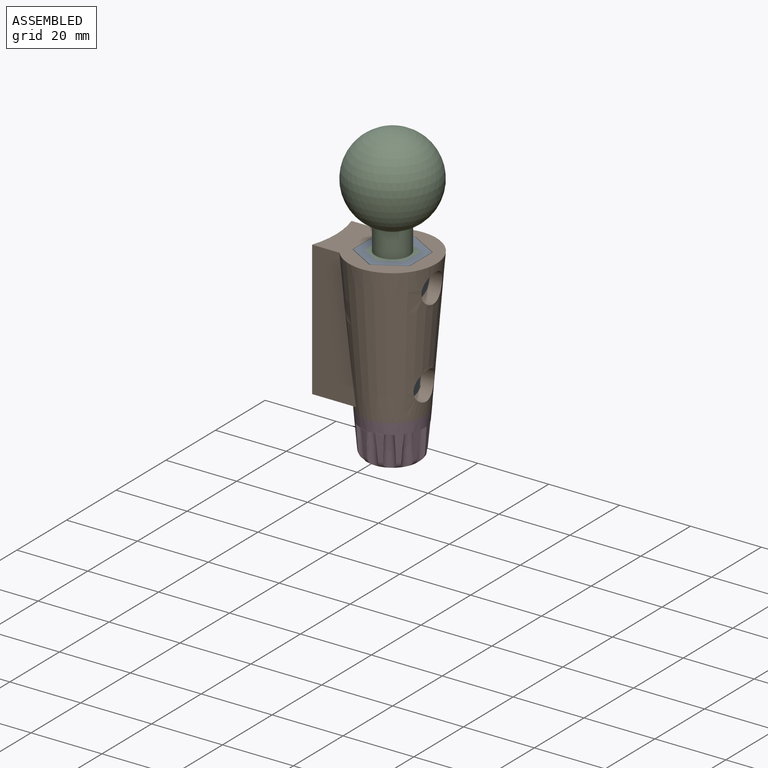
[diagram: assembled view]
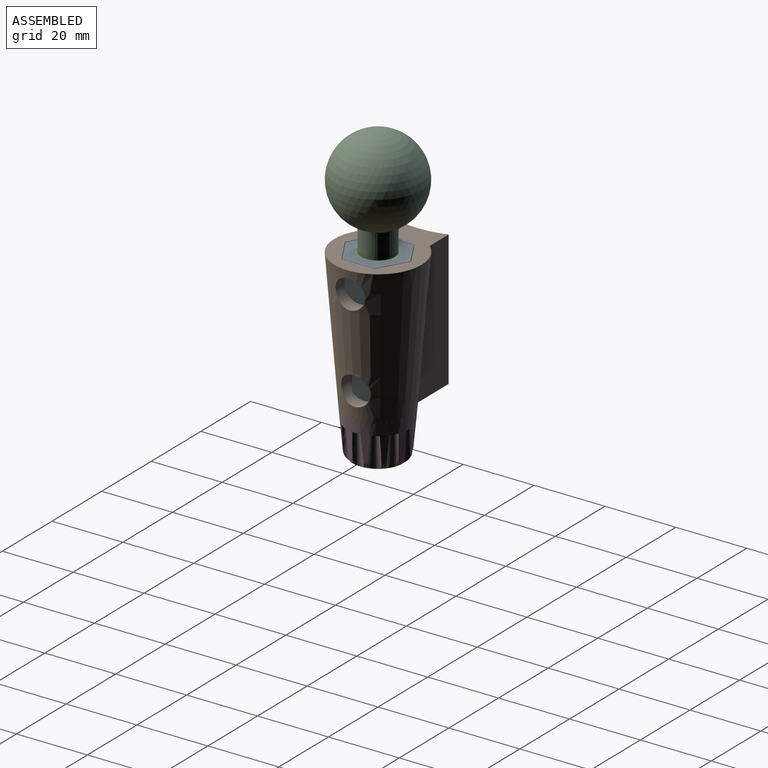
[diagram: assembled view, second angle]
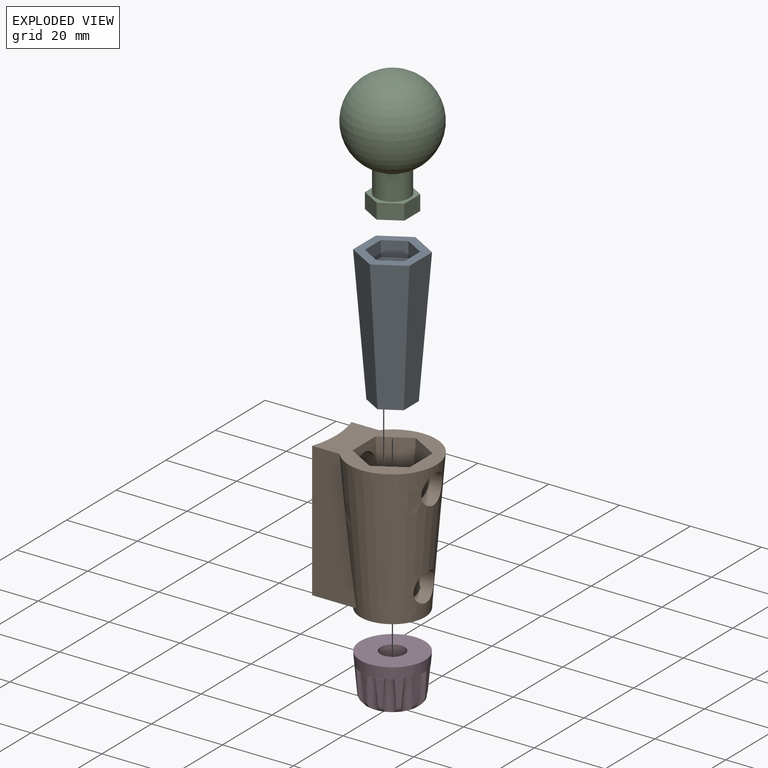
[diagram: exploded view]
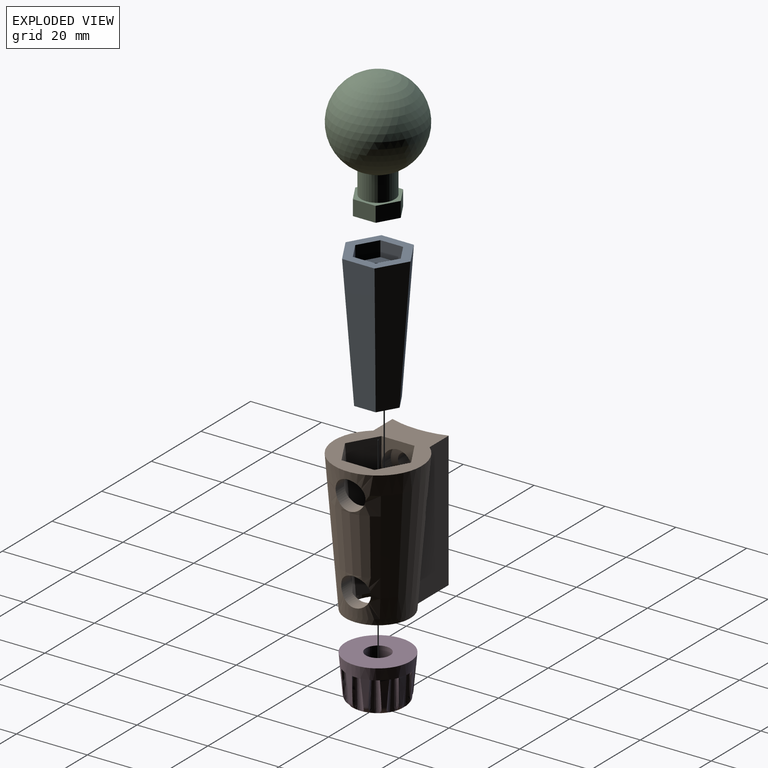
[diagram: exploded view, second angle]
ASSEMBLY  parts=4 mates=3
PART A: 16 faces, bbox 15.9x18.3x38.1 mm
  f0: plane 38.1x9.17mm, normal (1,0,-0.07), area 291.3mm2, adj f1,f5,f6,f7
  f1: plane 38.1x7.94mm, normal (0.5,0.86,-0.07), area 291.3mm2, adj f0,f2,f6,f7
  f2: plane 38.1x7.94mm, normal (-0.5,0.86,-0.07), area 291.3mm2, adj f1,f3,f6,f7
  f3: plane 38.1x9.17mm, normal (-1,0,-0.07), area 291.3mm2, adj f2,f4,f6,f7
  f4: plane 38.1x7.94mm, normal (-0.5,-0.86,-0.07), area 291.3mm2, adj f3,f5,f6,f7
  f5: plane 38.1x7.94mm, normal (0.5,-0.86,-0.07), area 291.3mm2, adj f0,f4,f6,f7
  f6: plane 12.18x10.55mm, normal (0,0,-1), area 64.7mm2, adj f0,f1,f2,f3,f4,f5,f15
  f7: plane 18.33x15.88mm, normal (0,0,1), area 111.3mm2, adj f0,f1,f2,f3,f4,f5,f9,f10
  f8: plane 12.83x11.11mm, normal (0,0,1), area 75.3mm2, adj f9,f10,f11,f12,f13,f14,f15
  f9: plane 5.56x4.32mm, normal (-0.5,0.87,0), area 27.7mm2, adj f7,f8,f10,f14
  f10: plane 6.42x4.32mm, normal (-1,0,0), area 27.7mm2, adj f7,f8,f9,f11
  f11: plane 5.56x4.32mm, normal (-0.5,-0.87,0), area 27.7mm2, adj f7,f8,f10,f12
  f12: plane 5.56x4.32mm, normal (0.5,-0.87,0), area 27.7mm2, adj f7,f8,f11,f13
  f13: plane 6.42x4.32mm, normal (1,0,0), area 27.7mm2, adj f7,f8,f12,f14
  f14: plane 5.56x4.32mm, normal (0.5,0.87,0), area 27.7mm2, adj f7,f8,f9,f13
  f15: cylinder r=3.17mm len=33.78mm, axis (0,0,1), area 673.9mm2, adj f6,f8
PART B: 26 faces, bbox 29.7x24.9x39.9 mm
  f0: cone r=12.34mm half-angle=4.6deg, axis (0,0,1), area 1795.8mm2, adj f4,f6,f7,f16,f20,f21
  f1: plane 6.76x3.95mm, normal (1,0,0.07), area 16.7mm2, adj f8,f9,f11,f22
  f2: plane 29.44x9.35mm, normal (-1,0,0.07), area 175.1mm2, adj f4,f12,f14,f20,f21
  f3: cylinder r=25.4mm len=38.1mm, axis (0,0,1), area 586mm2, adj f4,f5,f6,f7,f18,f19
  f4: plane 29.49x24.68mm, normal (0,0,1), area 330.4mm2, adj f0,f2,f3,f6,f7,f9,f10,f11
  f5: plane 15.88x12.37mm, normal (0,0,-1), area 132.4mm2, adj f3,f6,f7,f16
  f6: plane 38.1x12.37mm, normal (0,1,0), area 376.7mm2, adj f0,f3,f4,f5
  f7: plane 38.1x12.37mm, normal (0,-1,0), area 376.7mm2, adj f0,f3,f4,f5
  f8: plane 13.27x13.27mm, normal (0,0,-1), area 37.2mm2, adj f1,f9,f11,f12,f13,f14,f15
  f9: plane 38.1x8.06mm, normal (0.5,0.86,0.07), area 291.3mm2, adj f1,f4,f8,f10,f14,f22
  f10: plane 29.46x9.37mm, normal (1,0,0.07), area 175.1mm2, adj f4,f9,f11,f22,f24
  f11: plane 38.1x8.06mm, normal (0.5,-0.86,0.07), area 291.3mm2, adj f1,f4,f8,f10,f12,f22
  f12: plane 38.1x8.06mm, normal (-0.5,-0.86,0.07), area 291.3mm2, adj f2,f4,f8,f11,f13,f20
  f13: plane 6.76x3.95mm, normal (-1,0,0.07), area 16.7mm2, adj f8,f12,f14,f20
  f14: plane 38.1x8.06mm, normal (-0.5,0.86,0.07), area 291.3mm2, adj f2,f4,f8,f9,f13,f20
  f15: cone r=6.63mm half-angle=5deg, axis (0,0,-1), area 67.1mm2, adj f8,f17
  f16: cone r=9.26mm half-angle=5deg, axis (0,0,1), area 92.1mm2, adj f0,f5,f17
  f17: plane 18.25x18.25mm, normal (0,0,-1), area 117.5mm2, adj f15,f16
  f18: cylinder r=2.15mm len=4.76mm, axis (1,0,0), area 64.4mm2, adj f3,f23
  f19: cylinder r=2.15mm len=4.76mm, axis (1,0,0), area 64.4mm2, adj f3,f25
  f20: cylinder r=4.19mm len=8.38mm, axis (-1,0,0), area 100.8mm2, adj f0,f2,f12,f13,f14
  f21: cylinder r=4.19mm len=8.38mm, axis (-1,0,0), area 100.7mm2, adj f0,f2
  f22: cylinder r=4.19mm len=8.38mm, axis (-1,0,0), area 148.4mm2, adj f1,f9,f10,f11,f23
  f23: plane 8.38x8.38mm, normal (1,0,0), area 40.6mm2, adj f18,f22
  f24: cylinder r=4.19mm len=8.38mm, axis (-1,0,0), area 92mm2, adj f10,f25
  f25: plane 8.38x8.38mm, normal (1,0,0), area 40.6mm2, adj f19,f24
PART C: 12 faces, bbox 24.6x24.6x35.1 mm
  f0: cylinder r=4.76mm len=9.53mm, axis (0,0,-1), area 211.1mm2, adj f1,f8
  f1: sphere r=12.32mm, area 1832.9mm2, adj f0
  f2: plane 6.42x4.32mm, normal (1,0,0), area 27.7mm2, adj f3,f7,f8,f9
  f3: plane 5.56x4.32mm, normal (0.5,-0.87,0), area 27.7mm2, adj f2,f4,f8,f9
  f4: plane 5.56x4.32mm, normal (-0.5,-0.87,0), area 27.7mm2, adj f3,f5,f8,f9
  f5: plane 6.42x4.32mm, normal (-1,0,0), area 27.7mm2, adj f4,f6,f8,f9
  f6: plane 5.56x4.32mm, normal (-0.5,0.87,0), area 27.7mm2, adj f5,f7,f8,f9
  f7: plane 5.56x4.32mm, normal (0.5,0.87,0), area 27.7mm2, adj f2,f6,f8,f9
  f8: plane 12.83x11.11mm, normal (0,0,1), area 35.7mm2, adj f0,f2,f3,f4,f5,f6,f7
  f9: plane 12.83x11.11mm, normal (0,0,-1), area 75.3mm2, adj f2,f3,f4,f5,f6,f7,f10
  f10: cylinder r=3.17mm len=6.35mm, axis (0,0,1), area 86.1mm2, adj f9,f11
  f11: plane 6.35x6.35mm, normal (0,0,-1), area 31.7mm2, adj f10
PART D: 41 faces, bbox 18.3x18.3x12.8 mm
  f0: torus R=5.83mm, axis (0,0,-1), area 88.8mm2, adj f1,f2,f3,f4,f5,f7,f8,f11
  f1: plane 3.07x1.77mm, normal (0,0,-1), area 0.7mm2, adj f0,f34
  f2: plane 3.54x0.28mm, normal (0,0,-1), area 0.7mm2, adj f0,f35
  f3: plane 3.07x1.77mm, normal (0,0,-1), area 0.7mm2, adj f0,f36
  f4: plane 3.07x1.77mm, normal (0,0,-1), area 0.7mm2, adj f0,f37
  f5: plane 3.54x0.28mm, normal (0,0,-1), area 0.7mm2, adj f0,f38
  f6: cylinder r=3.43mm len=6.86mm, axis (0,0,-1), area 136.8mm2, adj f9,f40
  f7: cone r=9.13mm half-angle=5deg, axis (0,0,1), area 334mm2, adj f0,f9,f10,f11,f12,f13,f14,f15
  f8: plane 3.07x1.77mm, normal (0,0,-1), area 0.7mm2, adj f0,f39
  f9: plane 18.25x18.25mm, normal (0,0,1), area 224.7mm2, adj f6,f7
  f10: plane 2.18x1.72mm, normal (0,0,-1), area 2.2mm2, adj f7,f11
  f11: cone r=1.19mm half-angle=4deg, axis (0,0,-1), area 33mm2, adj f0,f7,f10
  f12: plane 2.38x1.19mm, normal (0,0,-1), area 2.2mm2, adj f7,f13
  f13: cone r=1.19mm half-angle=4deg, axis (0,0,-1), area 33mm2, adj f0,f7,f12
  f14: plane 2.18x1.72mm, normal (0,0,-1), area 2.2mm2, adj f7,f15
  f15: cone r=1.19mm half-angle=4deg, axis (0,0,-1), area 33mm2, adj f0,f7,f14
  f16: plane 2.18x1.72mm, normal (0,0,-1), area 2.2mm2, adj f7,f17
  f17: cone r=1.19mm half-angle=4deg, axis (0,0,-1), area 33mm2, adj f0,f7,f16
  f18: plane 2.18x1.72mm, normal (0,0,-1), area 2.2mm2, adj f7,f19
  f19: cone r=1.19mm half-angle=4deg, axis (0,0,-1), area 33mm2, adj f0,f7,f18
  f20: plane 2.18x1.72mm, normal (0,0,-1), area 2.2mm2, adj f7,f21
  f21: cone r=1.19mm half-angle=4deg, axis (0,0,-1), area 33mm2, adj f0,f7,f20
  f22: plane 2.38x1.19mm, normal (0,0,-1), area 2.2mm2, adj f7,f23
  f23: cone r=1.19mm half-angle=4deg, axis (0,0,-1), area 33mm2, adj f0,f7,f22
  f24: plane 2.38x1.19mm, normal (0,0,-1), area 2.2mm2, adj f7,f25
  f25: cone r=1.19mm half-angle=4deg, axis (0,0,-1), area 33mm2, adj f0,f7,f24
  f26: plane 2.18x1.72mm, normal (0,0,-1), area 2.2mm2, adj f7,f27
  f27: cone r=1.19mm half-angle=4deg, axis (0,0,-1), area 33mm2, adj f0,f7,f26
  f28: plane 2.18x1.72mm, normal (0,0,-1), area 2.2mm2, adj f7,f29
  f29: cone r=1.19mm half-angle=4deg, axis (0,0,-1), area 33mm2, adj f0,f7,f28
  f30: plane 2.38x1.19mm, normal (0,0,-1), area 2.2mm2, adj f7,f31
  f31: cone r=1.19mm half-angle=4deg, axis (0,0,-1), area 33mm2, adj f0,f7,f30
  f32: plane 2.18x1.72mm, normal (0,0,-1), area 2.2mm2, adj f7,f33
  f33: cone r=1.19mm half-angle=4deg, axis (0,0,-1), area 33mm2, adj f0,f7,f32
  f34: plane 6.45x5.66mm, normal (0.87,-0.5,0), area 40.7mm2, adj f0,f1,f35,f39,f40
  f35: plane 6.52x6.45mm, normal (0,-1,0), area 40.7mm2, adj f0,f2,f34,f36,f40
  f36: plane 6.45x5.66mm, normal (-0.87,-0.5,0), area 40.7mm2, adj f0,f3,f35,f37,f40
  f37: plane 6.45x5.66mm, normal (-0.87,0.5,0), area 40.7mm2, adj f0,f4,f36,f38,f40
  f38: plane 6.52x6.45mm, normal (0,1,0), area 40.7mm2, adj f0,f5,f37,f39,f40
  f39: plane 6.45x5.66mm, normal (0.87,0.5,0), area 40.7mm2, adj f0,f8,f34,f38,f40
  f40: plane 12.83x11.11mm, normal (0,0,-1), area 70mm2, adj f6,f34,f35,f36,f37,f38,f39
PLACE A rot(axis=(0,0,1),0deg) t=(0,0,0)mm
PLACE B rot(axis=(0,0,1),0deg) t=(0,0,0)mm
PLACE C rot(axis=(0,0,1),0deg) t=(0,0,0)mm
PLACE D rot(axis=(0,0,1),0deg) t=(0,0,0)mm
MATE fastened A.f15 <-> C.f0  axis (0,0,1) through (0,0,0)mm
MATE fastened B.f16 <-> D.f0  axis (0,0,-1) through (0,0,-35.37)mm
MATE fastened B.f15 <-> A.f15  axis (0,0,1) through (0,0,4.32)mm
